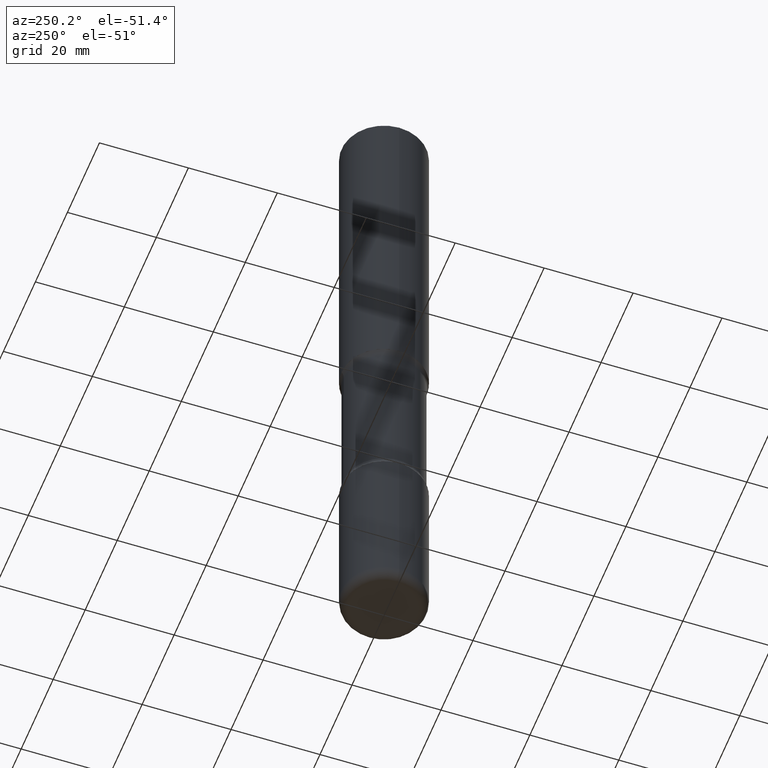
[diagram: clean part render]
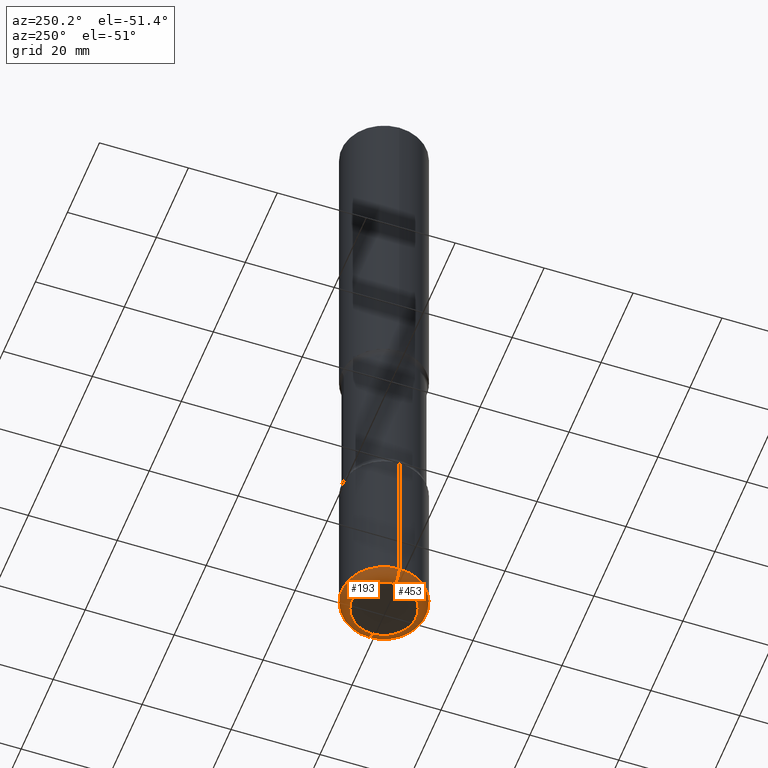
[diagram: same view with one multi-face feature highlighted, each face labeled with its STEP entity id]
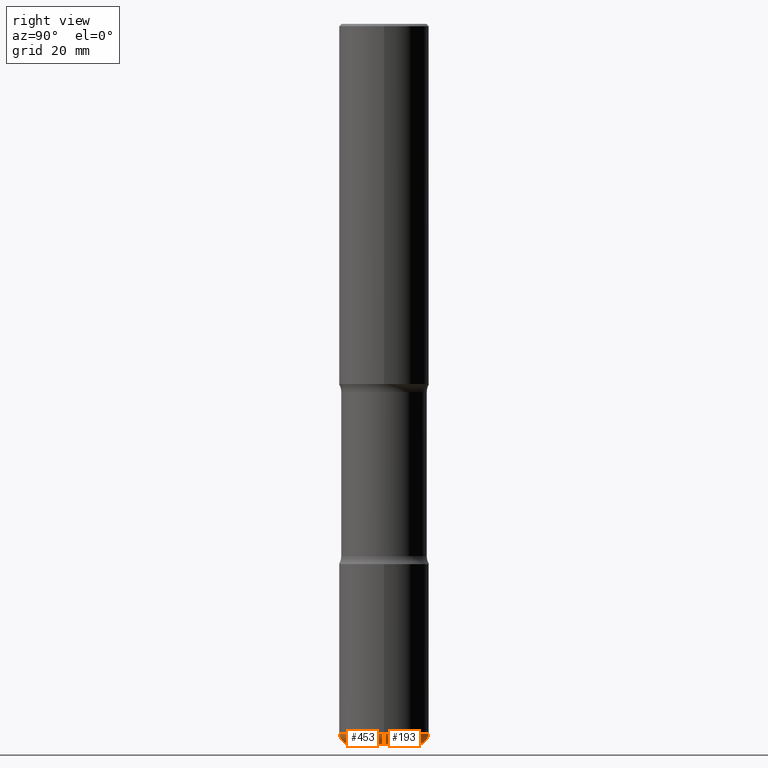
[diagram: same view with one multi-face feature highlighted, each face labeled with its STEP entity id]
A machine part, auxiliary view. The highlighted faces form ONE feature: a constant-radius fillet chain: 2 tangent blend faces with common blend radius 2.286 mm. The faces share edges in the B-rep.
A second angle (right view) of the same feature is appended — it is thin or edge-on in the first view.
Their STEP definitions:
[1] entity #193 (Torus):
#18 = CARTESIAN_POINT ( 'NONE',  ( -0.2850000000000005307, -1.860960791564669344E-14, -5.909999999999997478 ) ) ;
#26 = CIRCLE ( 'NONE', #192, 0.2850000000000005307 ) ;
#36 = DIRECTION ( 'NONE',  ( 1.000000000000000000, -6.982962677686252511E-15, 0.000000000000000000 ) ) ;
#37 = EDGE_CURVE ( 'NONE', #185, #153, #166, .T. ) ;
#87 = EDGE_CURVE ( 'NONE', #216, #330, #26, .T. ) ;
#90 = CARTESIAN_POINT ( 'NONE',  ( -0.2850000000000005307, -1.844698034480258891E-14, -5.999999999999998224 ) ) ;
#108 = EDGE_CURVE ( 'NONE', #330, #153, #408, .T. ) ;
#115 = DIRECTION ( 'NONE',  ( -2.445468806185136597E-29, 3.491481338843145583E-15, 1.000000000000000000 ) ) ;
#149 = DIRECTION ( 'NONE',  ( 1.000000000000000000, -6.982962677686261189E-15, 0.000000000000000000 ) ) ;
#153 = VERTEX_POINT ( 'NONE', #383 ) ;
#166 = CIRCLE ( 'NONE', #219, 0.3750000000000004996 ) ;
#167 = AXIS2_PLACEMENT_3D ( 'NONE', #18, #187, #269 ) ;
#183 = CARTESIAN_POINT ( 'NONE',  ( 1.445272064455415119E-28, -2.063465471256298313E-14, -5.909999999999997478 ) ) ;
#185 = VERTEX_POINT ( 'NONE', #559 ) ;
#187 = DIRECTION ( 'NONE',  ( 7.105427357601001859E-15, 1.000000000000000000, -3.491481338843145583E-15 ) ) ;
#192 = AXIS2_PLACEMENT_3D ( 'NONE', #455, #194, #149 ) ;
#193 = ADVANCED_FACE ( 'NONE', ( #430 ), #547, .T. ) ;
#194 = DIRECTION ( 'NONE',  ( -2.445468806185136597E-29, 3.491481338843145583E-15, 1.000000000000000000 ) ) ;
#202 = EDGE_CURVE ( 'NONE', #216, #185, #308, .T. ) ;
#205 = ORIENTED_EDGE ( 'NONE', *, *, #37, .F. ) ;
#216 = VERTEX_POINT ( 'NONE', #282 ) ;
#219 = AXIS2_PLACEMENT_3D ( 'NONE', #183, #229, #238 ) ;
#229 = DIRECTION ( 'NONE',  ( -2.445468806185136597E-29, 3.491481338843145583E-15, 1.000000000000000000 ) ) ;
#238 = DIRECTION ( 'NONE',  ( 1.000000000000000000, -6.982962677686263555E-15, 0.000000000000000000 ) ) ;
#269 = DIRECTION ( 'NONE',  ( -1.000000000000000000, 7.105427357601017636E-15, 0.000000000000000000 ) ) ;
#271 = ORIENTED_EDGE ( 'NONE', *, *, #108, .T. ) ;
#278 = DIRECTION ( 'NONE',  ( 1.000000000000000000, -6.982962677686270655E-15, 4.883557194083114583E-29 ) ) ;
#282 = CARTESIAN_POINT ( 'NONE',  ( 0.2850000000000005307, -2.293903239619945620E-14, -5.999999999999998224 ) ) ;
#289 = ORIENTED_EDGE ( 'NONE', *, *, #87, .T. ) ;
#308 = CIRCLE ( 'NONE', #357, 0.09000000000000020484 ) ;
#330 = VERTEX_POINT ( 'NONE', #90 ) ;
#333 = DIRECTION ( 'NONE',  ( -6.982962677686266711E-15, -1.000000000000000000, 3.491481338843145583E-15 ) ) ;
#336 = AXIS2_PLACEMENT_3D ( 'NONE', #507, #115, #278 ) ;
#357 = AXIS2_PLACEMENT_3D ( 'NONE', #515, #333, #36 ) ;
#383 = CARTESIAN_POINT ( 'NONE',  ( -0.3750000000000006661, -1.797011945346260428E-14, -5.909999999999997478 ) ) ;
#396 = EDGE_LOOP ( 'NONE', ( #289, #271, #205, #413 ) ) ;
#408 = CIRCLE ( 'NONE', #167, 0.09000000000000020484 ) ;
#413 = ORIENTED_EDGE ( 'NONE', *, *, #202, .F. ) ;
#430 = FACE_OUTER_BOUND ( 'NONE', #396, .T. ) ;
#455 = CARTESIAN_POINT ( 'NONE',  ( 1.467281283711081510E-28, -2.094888803305886640E-14, -5.999999999999998224 ) ) ;
#507 = CARTESIAN_POINT ( 'NONE',  ( 1.445272064455415119E-28, -2.063465471256298313E-14, -5.909999999999997478 ) ) ;
#515 = CARTESIAN_POINT ( 'NONE',  ( 0.2850000000000005307, -2.262479907570356978E-14, -5.909999999999997478 ) ) ;
#547 = TOROIDAL_SURFACE ( 'NONE', #336, 0.2850000000000005307, 0.09000000000000020484 ) ;
#559 = CARTESIAN_POINT ( 'NONE',  ( 0.3750000000000006661, -2.325326571669533630E-14, -5.909999999999997478 ) ) ;
[2] entity #453 (Torus):
#10 = DIRECTION ( 'NONE',  ( -2.445468806185136597E-29, 3.491481338843145583E-15, 1.000000000000000000 ) ) ;
#18 = CARTESIAN_POINT ( 'NONE',  ( -0.2850000000000005307, -1.860960791564669344E-14, -5.909999999999997478 ) ) ;
#23 = CIRCLE ( 'NONE', #191, 0.2850000000000005307 ) ;
#36 = DIRECTION ( 'NONE',  ( 1.000000000000000000, -6.982962677686252511E-15, 0.000000000000000000 ) ) ;
#46 = ORIENTED_EDGE ( 'NONE', *, *, #348, .F. ) ;
#90 = CARTESIAN_POINT ( 'NONE',  ( -0.2850000000000005307, -1.844698034480258891E-14, -5.999999999999998224 ) ) ;
#91 = DIRECTION ( 'NONE',  ( 1.000000000000000000, -6.982962677686270655E-15, 4.883557194083114583E-29 ) ) ;
#108 = EDGE_CURVE ( 'NONE', #330, #153, #408, .T. ) ;
#120 = TOROIDAL_SURFACE ( 'NONE', #439, 0.2850000000000005307, 0.09000000000000020484 ) ;
#130 = CIRCLE ( 'NONE', #203, 0.3750000000000004996 ) ;
#142 = DIRECTION ( 'NONE',  ( 1.000000000000000000, -6.982962677686261189E-15, 0.000000000000000000 ) ) ;
#153 = VERTEX_POINT ( 'NONE', #383 ) ;
#167 = AXIS2_PLACEMENT_3D ( 'NONE', #18, #187, #269 ) ;
#174 = FACE_OUTER_BOUND ( 'NONE', #416, .T. ) ;
#180 = DIRECTION ( 'NONE',  ( 1.000000000000000000, -6.982962677686263555E-15, 0.000000000000000000 ) ) ;
#185 = VERTEX_POINT ( 'NONE', #559 ) ;
#187 = DIRECTION ( 'NONE',  ( 7.105427357601001859E-15, 1.000000000000000000, -3.491481338843145583E-15 ) ) ;
#191 = AXIS2_PLACEMENT_3D ( 'NONE', #315, #530, #142 ) ;
#202 = EDGE_CURVE ( 'NONE', #216, #185, #308, .T. ) ;
#203 = AXIS2_PLACEMENT_3D ( 'NONE', #347, #477, #180 ) ;
#216 = VERTEX_POINT ( 'NONE', #282 ) ;
#269 = DIRECTION ( 'NONE',  ( -1.000000000000000000, 7.105427357601017636E-15, 0.000000000000000000 ) ) ;
#282 = CARTESIAN_POINT ( 'NONE',  ( 0.2850000000000005307, -2.293903239619945620E-14, -5.999999999999998224 ) ) ;
#304 = CARTESIAN_POINT ( 'NONE',  ( 1.445272064455415119E-28, -2.063465471256298313E-14, -5.909999999999997478 ) ) ;
#308 = CIRCLE ( 'NONE', #357, 0.09000000000000020484 ) ;
#315 = CARTESIAN_POINT ( 'NONE',  ( 1.467281283711081510E-28, -2.094888803305886640E-14, -5.999999999999998224 ) ) ;
#330 = VERTEX_POINT ( 'NONE', #90 ) ;
#333 = DIRECTION ( 'NONE',  ( -6.982962677686266711E-15, -1.000000000000000000, 3.491481338843145583E-15 ) ) ;
#347 = CARTESIAN_POINT ( 'NONE',  ( 1.445272064455415119E-28, -2.063465471256298313E-14, -5.909999999999997478 ) ) ;
#348 = EDGE_CURVE ( 'NONE', #153, #185, #130, .T. ) ;
#353 = ORIENTED_EDGE ( 'NONE', *, *, #516, .T. ) ;
#357 = AXIS2_PLACEMENT_3D ( 'NONE', #515, #333, #36 ) ;
#383 = CARTESIAN_POINT ( 'NONE',  ( -0.3750000000000006661, -1.797011945346260428E-14, -5.909999999999997478 ) ) ;
#408 = CIRCLE ( 'NONE', #167, 0.09000000000000020484 ) ;
#416 = EDGE_LOOP ( 'NONE', ( #523, #353, #449, #46 ) ) ;
#439 = AXIS2_PLACEMENT_3D ( 'NONE', #304, #10, #91 ) ;
#449 = ORIENTED_EDGE ( 'NONE', *, *, #202, .T. ) ;
#453 = ADVANCED_FACE ( 'NONE', ( #174 ), #120, .T. ) ;
#477 = DIRECTION ( 'NONE',  ( -2.445468806185136597E-29, 3.491481338843145583E-15, 1.000000000000000000 ) ) ;
#515 = CARTESIAN_POINT ( 'NONE',  ( 0.2850000000000005307, -2.262479907570356978E-14, -5.909999999999997478 ) ) ;
#516 = EDGE_CURVE ( 'NONE', #330, #216, #23, .T. ) ;
#523 = ORIENTED_EDGE ( 'NONE', *, *, #108, .F. ) ;
#530 = DIRECTION ( 'NONE',  ( -2.445468806185136597E-29, 3.491481338843145583E-15, 1.000000000000000000 ) ) ;
#559 = CARTESIAN_POINT ( 'NONE',  ( 0.3750000000000006661, -2.325326571669533630E-14, -5.909999999999997478 ) ) ;